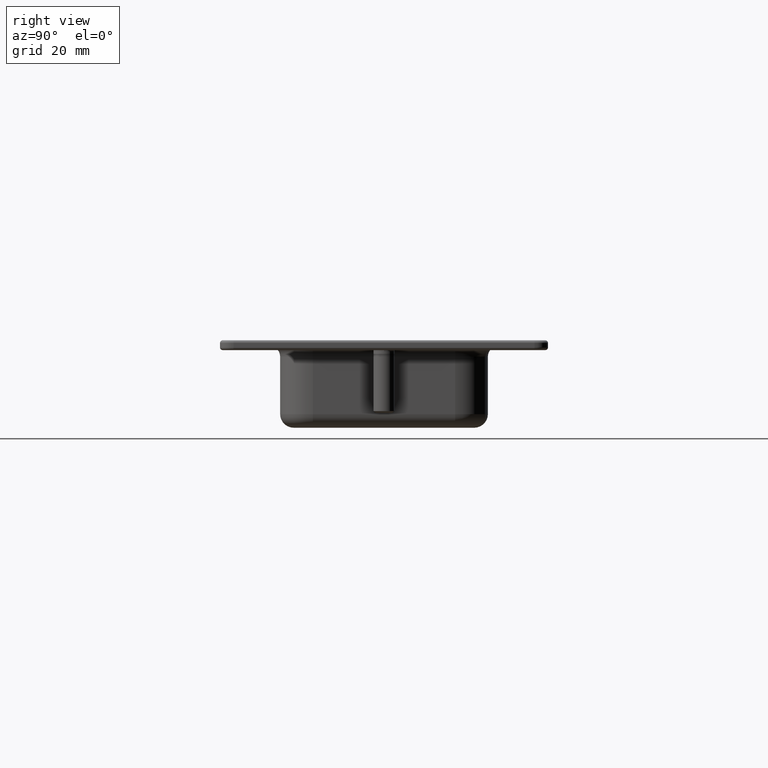
[diagram: clean part render]
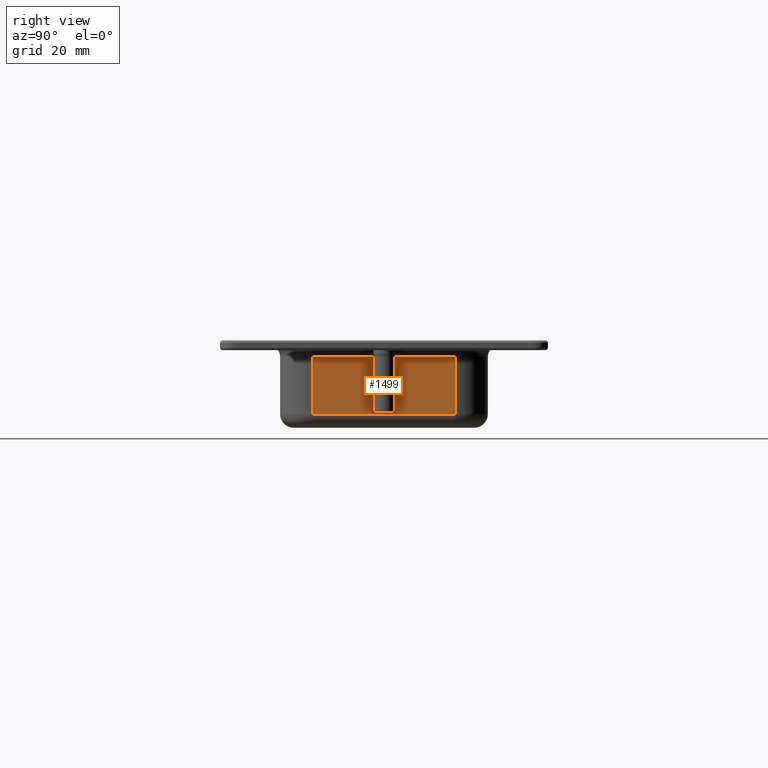
[diagram: same view with one face highlighted and labeled with its STEP entity id]
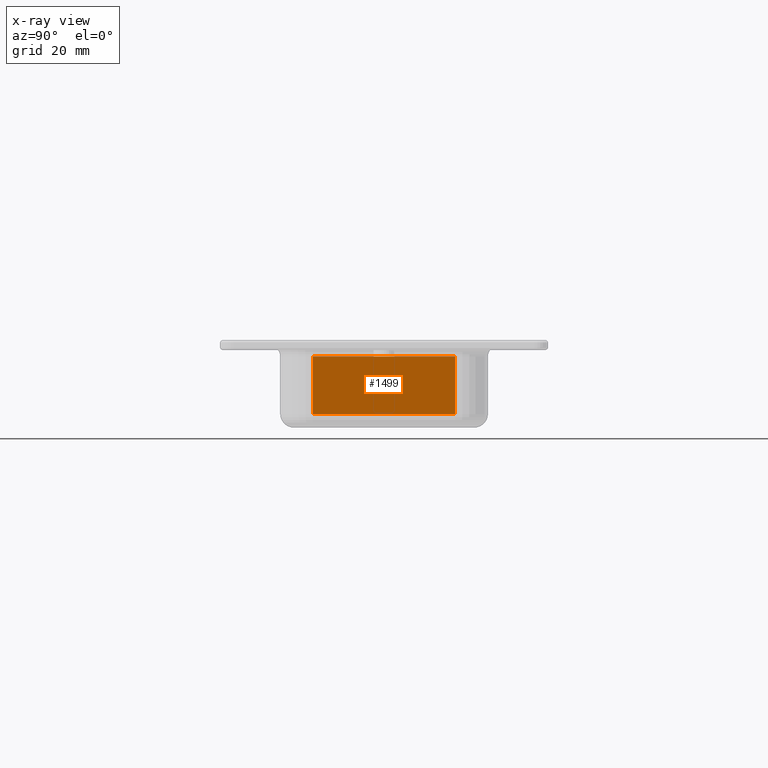
[diagram: x-ray of the same camera — body ghosted, the highlighted face saturated]
A machine part, right view. The second image highlights one B-rep face of the part: STEP entity #1499.
The next image is the same camera in x-ray: the body ghosted, the highlighted face saturated — about 0% of this face is hidden behind the body in this view.
In plain terms, the highlighted planar face has unit normal (1, 0, 0).
Its self-contained STEP definition (entity closure, byte-faithful):
#77=LINE('',#2441,#181);
#81=LINE('',#2450,#185);
#82=LINE('',#2454,#186);
#83=LINE('',#2455,#187);
#181=VECTOR('',#1901,26.);
#185=VECTOR('',#1909,10.5);
#186=VECTOR('',#1914,10.5);
#187=VECTOR('',#1915,26.);
#276=PLANE('',#1630);
#329=FACE_OUTER_BOUND('',#438,.T.);
#438=EDGE_LOOP('',(#1076,#1077,#1078,#1079));
#672=VERTEX_POINT('',#2411);
#679=VERTEX_POINT('',#2437);
#682=VERTEX_POINT('',#2449);
#683=VERTEX_POINT('',#2453);
#823=EDGE_CURVE('',#672,#679,#77,.T.);
#827=EDGE_CURVE('',#682,#679,#81,.T.);
#829=EDGE_CURVE('',#683,#672,#82,.T.);
#830=EDGE_CURVE('',#682,#683,#83,.T.);
#1076=ORIENTED_EDGE('',*,*,#823,.F.);
#1077=ORIENTED_EDGE('',*,*,#829,.F.);
#1078=ORIENTED_EDGE('',*,*,#830,.F.);
#1079=ORIENTED_EDGE('',*,*,#827,.T.);
#1499=ADVANCED_FACE('',(#329),#276,.T.);
#1630=AXIS2_PLACEMENT_3D('',#2452,#1912,#1913);
#1901=DIRECTION('',(0.,1.,0.));
#1909=DIRECTION('',(0.,0.,1.));
#1912=DIRECTION('center_axis',(1.,0.,0.));
#1913=DIRECTION('ref_axis',(0.,-1.,0.));
#1914=DIRECTION('',(0.,0.,1.));
#1915=DIRECTION('',(0.,-1.,0.));
#2411=CARTESIAN_POINT('',(43.5,-13.,-3.));
#2437=CARTESIAN_POINT('',(43.5,13.,-3.));
#2441=CARTESIAN_POINT('',(43.5,6.5,-3.));
#2449=CARTESIAN_POINT('',(43.5,13.,-13.5));
#2450=CARTESIAN_POINT('',(43.5,13.,-1.8));
#2452=CARTESIAN_POINT('Origin',(43.5,13.,-1.8));
#2453=CARTESIAN_POINT('',(43.5,-13.,-13.5));
#2454=CARTESIAN_POINT('',(43.5,-13.,-1.8));
#2455=CARTESIAN_POINT('',(43.5,6.5,-13.5));